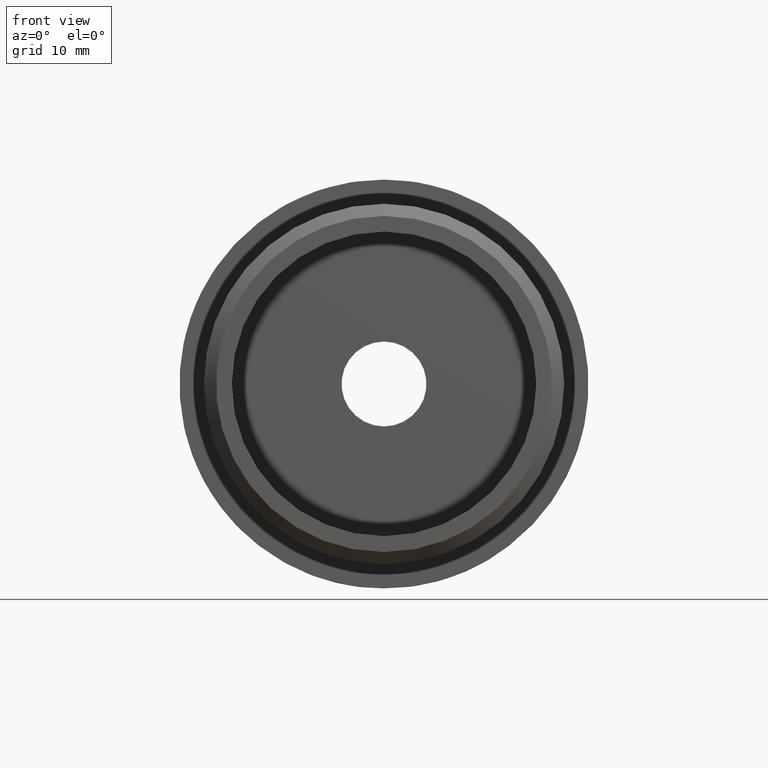
[diagram: clean part render]
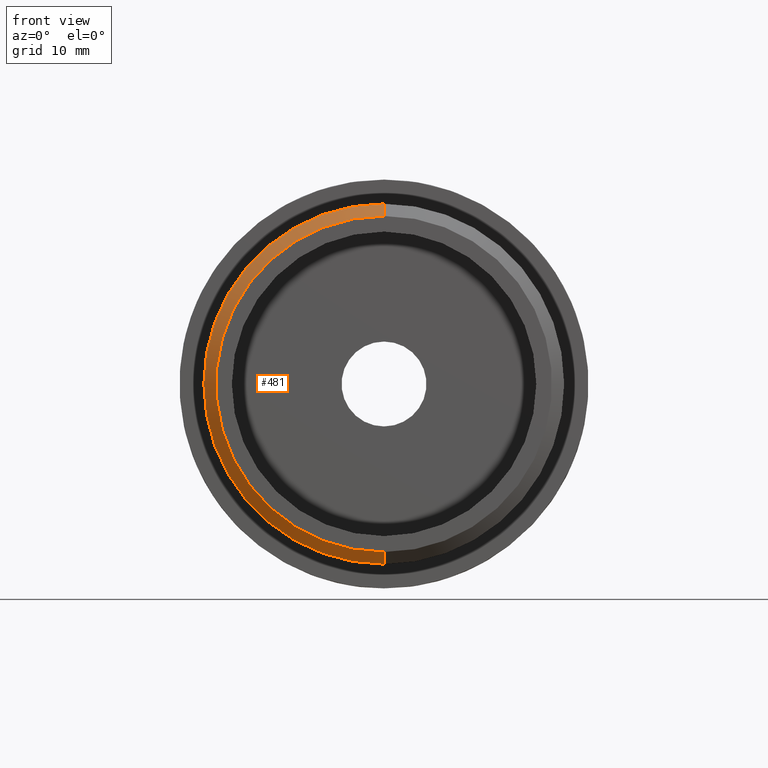
[diagram: same view with one face highlighted and labeled with its STEP entity id]
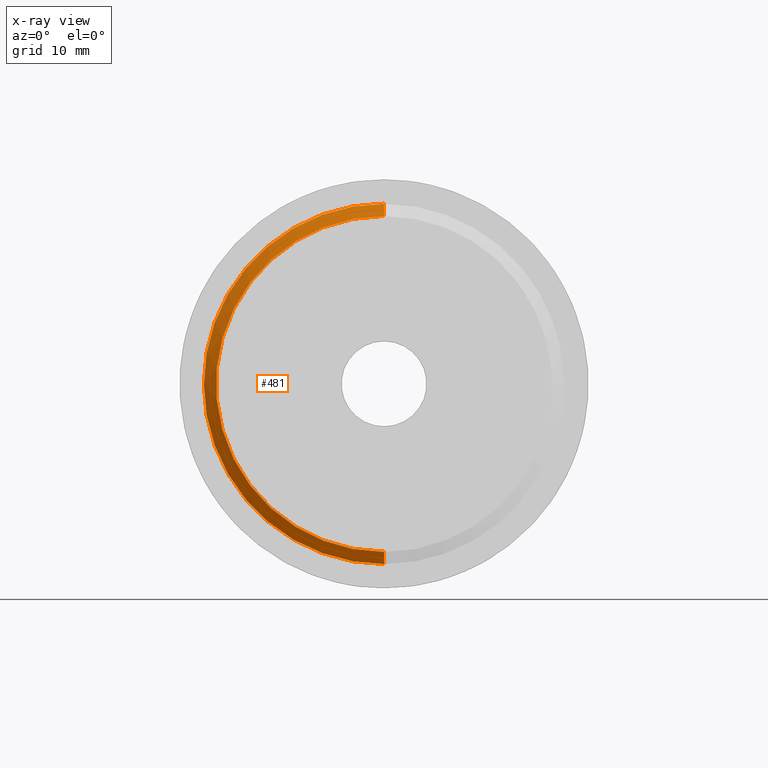
[diagram: x-ray of the same camera — body ghosted, the highlighted face saturated]
A machine part, front view. The second image highlights one B-rep face of the part: STEP entity #481.
The next image is the same camera in x-ray: the body ghosted, the highlighted face saturated — about 0% of this face is hidden behind the body in this view.
In plain terms, the highlighted conical surface has half-angle 45 deg.
Its self-contained STEP definition (entity closure, byte-faithful):
#154 = DIRECTION ( 'NONE',  ( 0.0000000000000000000, 0.7071067811865500200, 0.7071067811865451300 ) ) ;
#175 = CARTESIAN_POINT ( 'NONE',  ( 0.0000000000000000000, -25.50000000000000400, 13.84999999999999400 ) ) ;
#481 = ADVANCED_FACE ( 'NONE', ( #11181 ), #5262, .T. ) ;
#605 = DIRECTION ( 'NONE',  ( 0.0000000000000000000, 1.000000000000000000, 0.0000000000000000000 ) ) ;
#829 = CARTESIAN_POINT ( 'NONE',  ( 0.0000000000000000000, -25.50000000000000400, 0.0000000000000000000 ) ) ;
#890 = DIRECTION ( 'NONE',  ( 0.0000000000000000000, 1.000000000000000000, 0.0000000000000000000 ) ) ;
#1094 = CARTESIAN_POINT ( 'NONE',  ( 1.696135816819083400E-015, -25.50000000000000400, -13.84999999999999400 ) ) ;
#1559 = EDGE_CURVE ( 'NONE', #8214, #11382, #8678, .T. ) ;
#1572 = VECTOR ( 'NONE', #2085, 1000.000000000000100 ) ;
#2085 = DIRECTION ( 'NONE',  ( 8.659560562354904500E-017, 0.7071067811865500200, -0.7071067811865451300 ) ) ;
#3121 = CARTESIAN_POINT ( 'NONE',  ( 0.0000000000000000000, -25.50000000000000400, 0.0000000000000000000 ) ) ;
#3207 = ORIENTED_EDGE ( 'NONE', *, *, #1559, .F. ) ;
#3456 = VERTEX_POINT ( 'NONE', #12194 ) ;
#3709 = LINE ( 'NONE', #175, #8692 ) ;
#4123 = DIRECTION ( 'NONE',  ( 0.0000000000000000000, 0.0000000000000000000, -1.000000000000000000 ) ) ;
#4414 = EDGE_CURVE ( 'NONE', #12037, #11382, #3709, .T. ) ;
#4603 = ORIENTED_EDGE ( 'NONE', *, *, #6865, .F. ) ;
#5262 = CONICAL_SURFACE ( 'NONE', #10775, 13.84999999999999400, 0.7853981633974447300 ) ;
#5510 = DIRECTION ( 'NONE',  ( 0.0000000000000000000, 0.0000000000000000000, -1.000000000000000000 ) ) ;
#5515 = ORIENTED_EDGE ( 'NONE', *, *, #4414, .T. ) ;
#5586 = AXIS2_PLACEMENT_3D ( 'NONE', #6559, #605, #5510 ) ;
#6227 = CARTESIAN_POINT ( 'NONE',  ( 0.0000000000000000000, -25.50000000000000400, 13.84999999999999400 ) ) ;
#6559 = CARTESIAN_POINT ( 'NONE',  ( 0.0000000000000000000, -24.49999999999998600, 0.0000000000000000000 ) ) ;
#6857 = LINE ( 'NONE', #1094, #1572 ) ;
#6865 = EDGE_CURVE ( 'NONE', #3456, #8214, #6857, .T. ) ;
#7124 = AXIS2_PLACEMENT_3D ( 'NONE', #3121, #10096, #4123 ) ;
#7619 = EDGE_CURVE ( 'NONE', #12037, #3456, #10754, .T. ) ;
#8214 = VERTEX_POINT ( 'NONE', #11736 ) ;
#8382 = DIRECTION ( 'NONE',  ( 0.0000000000000000000, 0.0000000000000000000, 1.000000000000000000 ) ) ;
#8678 = CIRCLE ( 'NONE', #5586, 14.85000000000000100 ) ;
#8692 = VECTOR ( 'NONE', #154, 1000.000000000000100 ) ;
#9905 = CARTESIAN_POINT ( 'NONE',  ( 0.0000000000000000000, -24.49999999999998600, 14.85000000000000100 ) ) ;
#10096 = DIRECTION ( 'NONE',  ( 0.0000000000000000000, -1.000000000000000000, 0.0000000000000000000 ) ) ;
#10752 = EDGE_LOOP ( 'NONE', ( #4603, #12870, #5515, #3207 ) ) ;
#10754 = CIRCLE ( 'NONE', #7124, 13.84999999999999400 ) ;
#10775 = AXIS2_PLACEMENT_3D ( 'NONE', #829, #890, #8382 ) ;
#11181 = FACE_OUTER_BOUND ( 'NONE', #10752, .T. ) ;
#11382 = VERTEX_POINT ( 'NONE', #9905 ) ;
#11736 = CARTESIAN_POINT ( 'NONE',  ( 1.818600496733819900E-015, -24.49999999999998600, -14.85000000000000100 ) ) ;
#12037 = VERTEX_POINT ( 'NONE', #6227 ) ;
#12194 = CARTESIAN_POINT ( 'NONE',  ( 1.757368156776451600E-015, -25.50000000000000400, -13.84999999999999400 ) ) ;
#12870 = ORIENTED_EDGE ( 'NONE', *, *, #7619, .F. ) ;